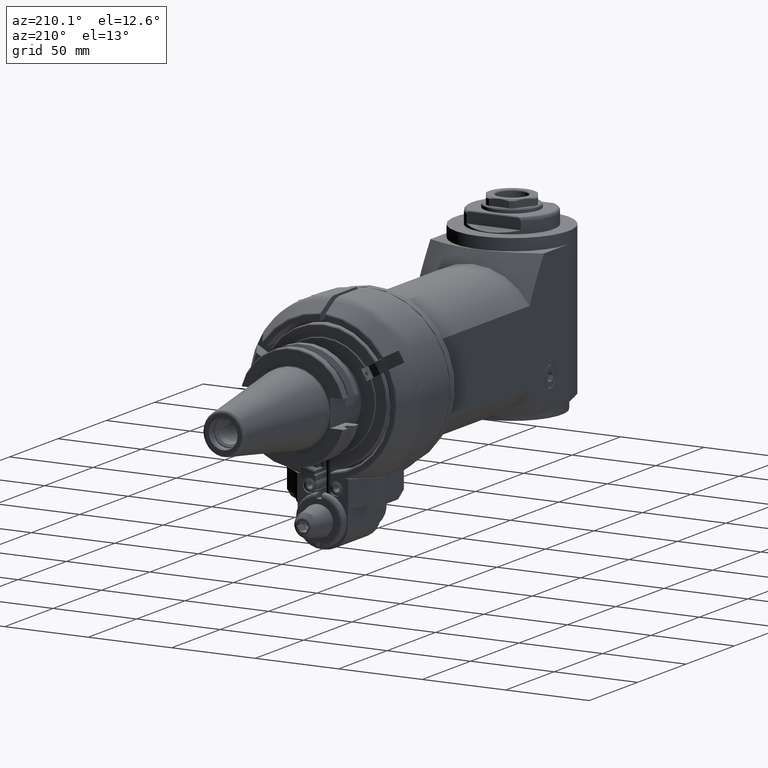
[diagram: clean part render]
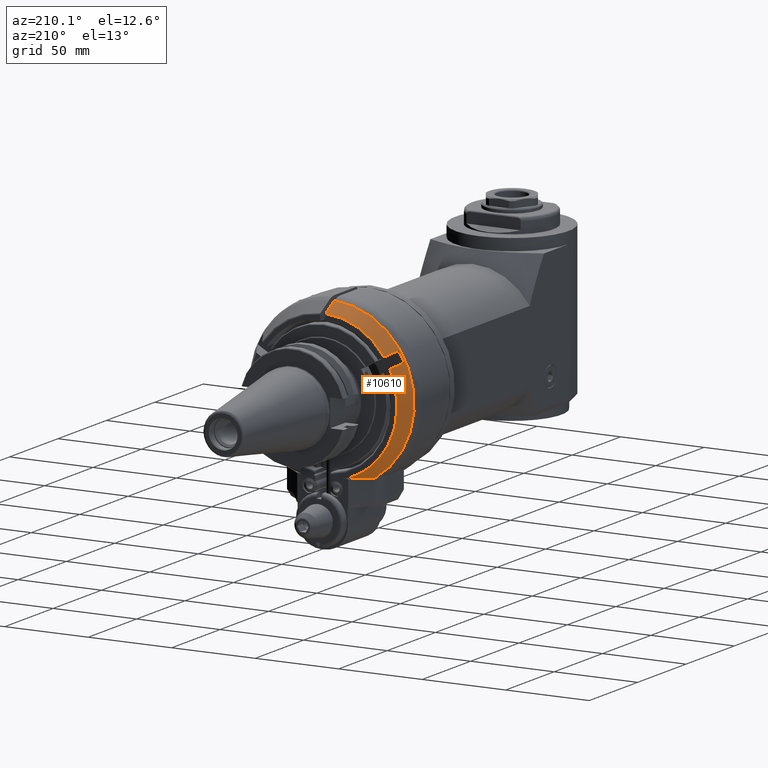
[diagram: same view with one face highlighted and labeled with its STEP entity id]
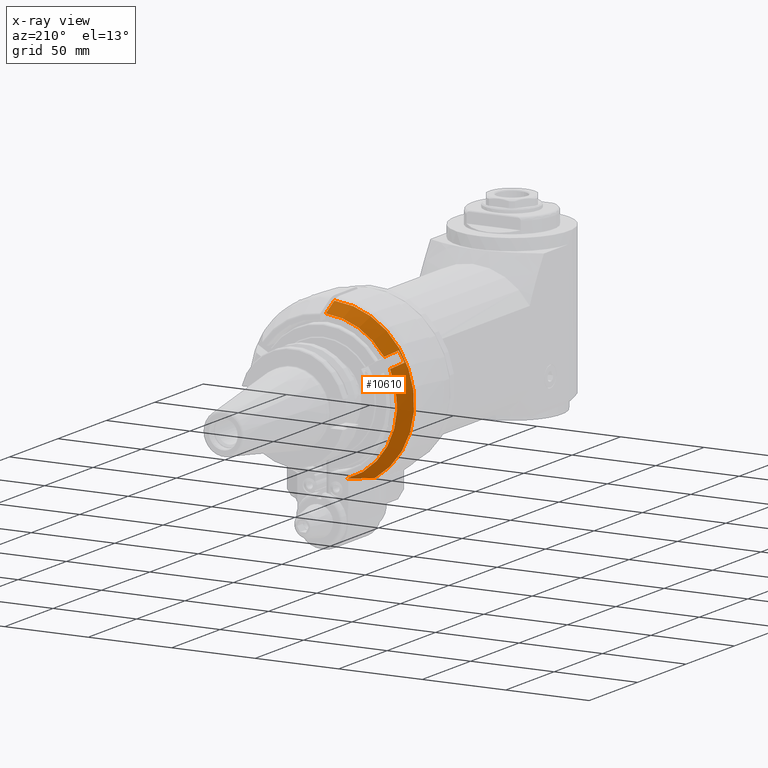
[diagram: x-ray of the same camera — body ghosted, the highlighted face saturated]
A machine part, auxiliary view. The second image highlights one B-rep face of the part: STEP entity #10610.
The next image is the same camera in x-ray: the body ghosted, the highlighted face saturated — about 0% of this face is hidden behind the body in this view.
In plain terms, the highlighted conical surface has half-angle 30 deg.
Its self-contained STEP definition (entity closure, byte-faithful):
#426=(
BOUNDED_CURVE()
B_SPLINE_CURVE(2,(#16608,#16609,#16610),.UNSPECIFIED.,.F.,.F.)
B_SPLINE_CURVE_WITH_KNOTS((3,3),(-2.34692632425289,-0.492536396799847),
 .UNSPECIFIED.)
CURVE()
GEOMETRIC_REPRESENTATION_ITEM()
RATIONAL_B_SPLINE_CURVE((1.0336401622138,1.03091361245284,1.01149371983583))
REPRESENTATION_ITEM('')
);
#547=B_SPLINE_CURVE_WITH_KNOTS('',3,(#17055,#17056,#17057,#17058,#17059,
#17060,#17061,#17062,#17063,#17064),.UNSPECIFIED.,.F.,.F.,(4,3,3,4),(0.,
0.3333333333333,0.6666666666667,0.999997768857294),.UNSPECIFIED.);
#550=B_SPLINE_CURVE_WITH_KNOTS('',3,(#17098,#17099,#17100,#17101,#17102,
#17103,#17104,#17105,#17106,#17107),.UNSPECIFIED.,.F.,.F.,(4,3,3,4),(1.43470621425353E-5,
0.3333333333333,0.6666666666667,1.),.UNSPECIFIED.);
#551=B_SPLINE_CURVE_WITH_KNOTS('',3,(#17111,#17112,#17113,#17114,#17115,
#17116,#17117,#17118,#17119,#17120),.UNSPECIFIED.,.F.,.F.,(4,3,3,4),(0.,
0.3333333333333,0.6666666666667,0.99998661906138),.UNSPECIFIED.);
#1144=FACE_OUTER_BOUND('',#1822,.T.);
#1822=EDGE_LOOP('',(#7487,#7488,#7489,#7490,#7491,#7492,#7493,#7494));
#2614=CIRCLE('',#11770,49.39230484541);
#2615=CIRCLE('',#11772,44.28867513459);
#2616=CIRCLE('',#11773,48.90747728811);
#2617=CIRCLE('',#11774,44.28867513459);
#4642=VERTEX_POINT('',#16594);
#4643=VERTEX_POINT('',#16607);
#4718=VERTEX_POINT('',#17045);
#4719=VERTEX_POINT('',#17054);
#4723=VERTEX_POINT('',#17095);
#4724=VERTEX_POINT('',#17097);
#4725=VERTEX_POINT('',#17108);
#4726=VERTEX_POINT('',#17110);
#5689=EDGE_CURVE('',#4642,#4643,#426,.T.);
#5797=EDGE_CURVE('',#4719,#4718,#547,.T.);
#5804=EDGE_CURVE('',#4719,#4642,#2614,.T.);
#5805=EDGE_CURVE('',#4723,#4718,#2615,.T.);
#5806=EDGE_CURVE('',#4723,#4724,#550,.T.);
#5807=EDGE_CURVE('',#4725,#4724,#2616,.T.);
#5808=EDGE_CURVE('',#4725,#4726,#551,.T.);
#5809=EDGE_CURVE('',#4643,#4726,#2617,.T.);
#7487=ORIENTED_EDGE('',*,*,#5804,.F.);
#7488=ORIENTED_EDGE('',*,*,#5797,.T.);
#7489=ORIENTED_EDGE('',*,*,#5805,.F.);
#7490=ORIENTED_EDGE('',*,*,#5806,.T.);
#7491=ORIENTED_EDGE('',*,*,#5807,.F.);
#7492=ORIENTED_EDGE('',*,*,#5808,.T.);
#7493=ORIENTED_EDGE('',*,*,#5809,.F.);
#7494=ORIENTED_EDGE('',*,*,#5689,.F.);
#10429=CONICAL_SURFACE('',#11771,46.84048999,0.523598775598299);
#10610=ADVANCED_FACE('',(#1144),#10429,.T.);
#11770=AXIS2_PLACEMENT_3D('',#17093,#13291,#13292);
#11771=AXIS2_PLACEMENT_3D('',#17094,#13293,#13294);
#11772=AXIS2_PLACEMENT_3D('',#17096,#13295,#13296);
#11773=AXIS2_PLACEMENT_3D('',#17109,#13297,#13298);
#11774=AXIS2_PLACEMENT_3D('',#17121,#13299,#13300);
#13291=DIRECTION('center_axis',(1.,0.,0.));
#13292=DIRECTION('ref_axis',(0.,-0.999538752412674,-0.0303691031364992));
#13293=DIRECTION('center_axis',(1.,0.,0.));
#13294=DIRECTION('ref_axis',(0.,-1.,0.));
#13295=DIRECTION('center_axis',(-1.,0.,0.));
#13296=DIRECTION('ref_axis',(0.,-0.566875606468697,-0.823803402997795));
#13297=DIRECTION('center_axis',(-1.,0.,0.));
#13298=DIRECTION('ref_axis',(0.,-0.436742034135616,-0.899586791598834));
#13299=DIRECTION('center_axis',(-1.,0.,0.));
#13300=DIRECTION('ref_axis',(0.,0.948323693864426,-0.317304540867809));
#16594=CARTESIAN_POINT('',(-42.16025403784,42.,-25.99230228246));
#16607=CARTESIAN_POINT('',(-51.,42.,-14.05299772923));
#16608=CARTESIAN_POINT('Ctrl Pts',(-42.1602540378326,42.,-25.9923022824525));
#16609=CARTESIAN_POINT('Ctrl Pts',(-47.8978898922657,42.,-19.6974303643633));
#16610=CARTESIAN_POINT('Ctrl Pts',(-50.999999999992,42.,-14.0529977292256));
#17045=CARTESIAN_POINT('',(-51.0000000065758,-44.2632663160532,-1.5000000000986));
#17054=CARTESIAN_POINT('',(-42.1602661977814,-49.3695157362103,-1.50000010664755));
#17055=CARTESIAN_POINT('Ctrl Pts',(-42.16027835559,-49.36950871544,-1.5));
#17056=CARTESIAN_POINT('Ctrl Pts',(-43.14243981185,-48.8021958626,-1.5));
#17057=CARTESIAN_POINT('Ctrl Pts',(-44.1246451340599,-48.2348486363401,
-1.5));
#17058=CARTESIAN_POINT('Ctrl Pts',(-45.1068448132481,-47.6674946728002,
-1.5));
#17059=CARTESIAN_POINT('Ctrl Pts',(-46.0890444924366,-47.1001407092601,
-1.5));
#17060=CARTESIAN_POINT('Ctrl Pts',(-47.0712385286034,-46.53278000844,-1.5));
#17061=CARTESIAN_POINT('Ctrl Pts',(-48.053427801622,-45.9654109220473,-1.5));
#17062=CARTESIAN_POINT('Ctrl Pts',(-49.0356105004269,-45.3980456332991,
-1.5));
#17063=CARTESIAN_POINT('Ctrl Pts',(-50.0177884361472,-44.8306719590907,
-1.5));
#17064=CARTESIAN_POINT('Ctrl Pts',(-51.0000000078003,-44.2632663181729,
-1.5));
#17093=CARTESIAN_POINT('Origin',(-42.16025403784,0.,0.));
#17094=CARTESIAN_POINT('Origin',(-46.58012701892,0.,0.));
#17095=CARTESIAN_POINT('',(-51.0000000548549,-25.106169583369,-36.4851613012507));
#17096=CARTESIAN_POINT('Origin',(-51.,0.,0.));
#17097=CARTESIAN_POINT('',(-43.,-27.42212894174,-40.4965205788));
#17098=CARTESIAN_POINT('Ctrl Pts',(-51.0000000937164,-25.1061696166642,
-36.4851613595043));
#17099=CARTESIAN_POINT('Ctrl Pts',(-50.1110018183063,-25.3636064503954,
-36.9310550352662));
#17100=CARTESIAN_POINT('Ctrl Pts',(-49.2222070736141,-25.6209557695952,
-37.3767971314136));
#17101=CARTESIAN_POINT('Ctrl Pts',(-48.3333776153511,-25.8782900895712,
-37.8225132481432));
#17102=CARTESIAN_POINT('Ctrl Pts',(-47.4445098991668,-26.1356354859985,
-38.2682485498491));
#17103=CARTESIAN_POINT('Ctrl Pts',(-46.5556074664233,-26.3929658819105,
-38.7139578699006));
#17104=CARTESIAN_POINT('Ctrl Pts',(-45.6667068043139,-26.6502729859213,
-39.1596268471957));
#17105=CARTESIAN_POINT('Ctrl Pts',(-44.7778061422049,-26.9075800899321,
-39.6052958244907));
#17106=CARTESIAN_POINT('Ctrl Pts',(-43.88890725073,-27.1648639020415,-40.0509244590292));
#17107=CARTESIAN_POINT('Ctrl Pts',(-43.,-27.4221289417408,-40.4965205787996));
#17108=CARTESIAN_POINT('',(-43.,-21.35995111525,-43.9965205788));
#17109=CARTESIAN_POINT('Origin',(-43.,0.,0.));
#17110=CARTESIAN_POINT('',(-51.000000018111,-19.0439917665071,-39.985161316867));
#17111=CARTESIAN_POINT('Ctrl Pts',(-43.,-21.3599511152515,-43.9965205787991));
#17112=CARTESIAN_POINT('Ctrl Pts',(-43.88890725073,-21.1026860755522,-43.5509244590287));
#17113=CARTESIAN_POINT('Ctrl Pts',(-44.7778064012199,-20.8454021881325,
-43.105295694049));
#17114=CARTESIAN_POINT('Ctrl Pts',(-45.6667068043148,-20.5880951594306,
-42.6596268471929));
#17115=CARTESIAN_POINT('Ctrl Pts',(-46.5556072074099,-20.3307881307287,
-42.2139580003366));
#17116=CARTESIAN_POINT('Ctrl Pts',(-47.4445088631101,-20.0734579607446,
-41.7682490716038));
#17117=CARTESIAN_POINT('Ctrl Pts',(-48.3333776153528,-19.8161122630825,
-41.3225132481438));
#17118=CARTESIAN_POINT('Ctrl Pts',(-49.2222106859005,-19.5587768960015,
-40.8767953177751));
#17119=CARTESIAN_POINT('Ctrl Pts',(-50.1110108556324,-19.3014260024891,
-40.4310504948384));
#17120=CARTESIAN_POINT('Ctrl Pts',(-51.0000000543321,-19.0439917970341,
-39.9851613713843));
#17121=CARTESIAN_POINT('Origin',(-51.,0.,0.));